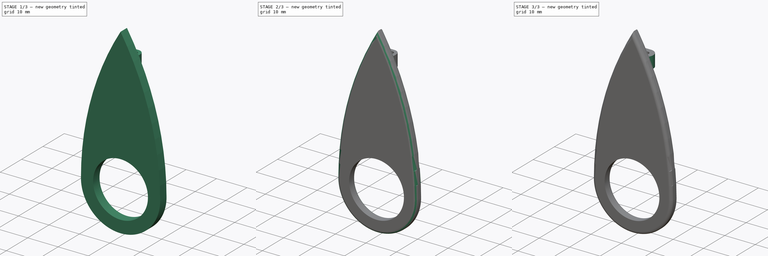
[diagram: build sequence overview — one tinted view per stage of 3, left to right]
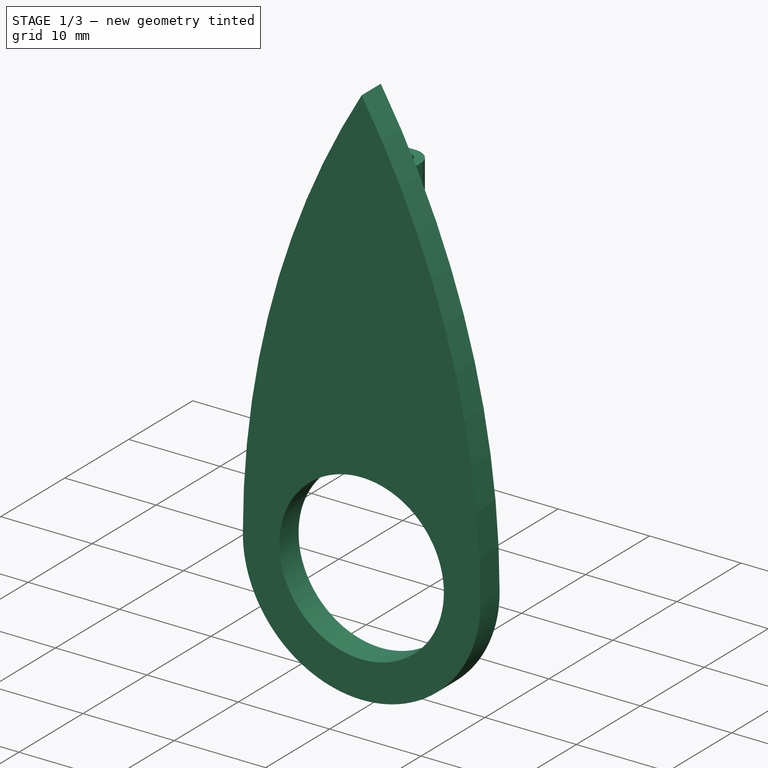
[diagram: stage 1 of 3 — iso view after this stage's code; geometry added in this stage tinted green]
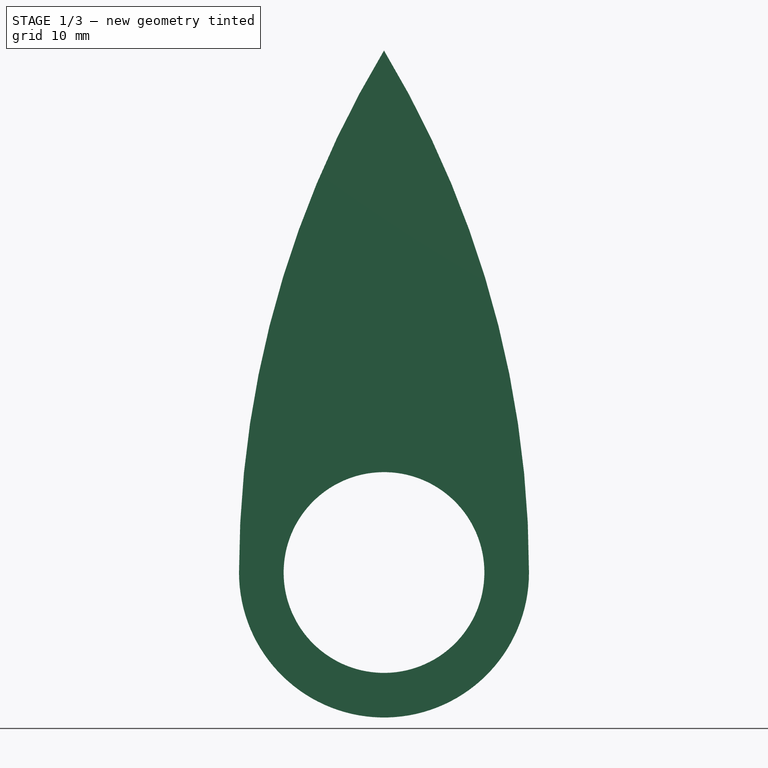
[diagram: stage 1 of 3 — front view after this stage's code; geometry added in this stage tinted green]
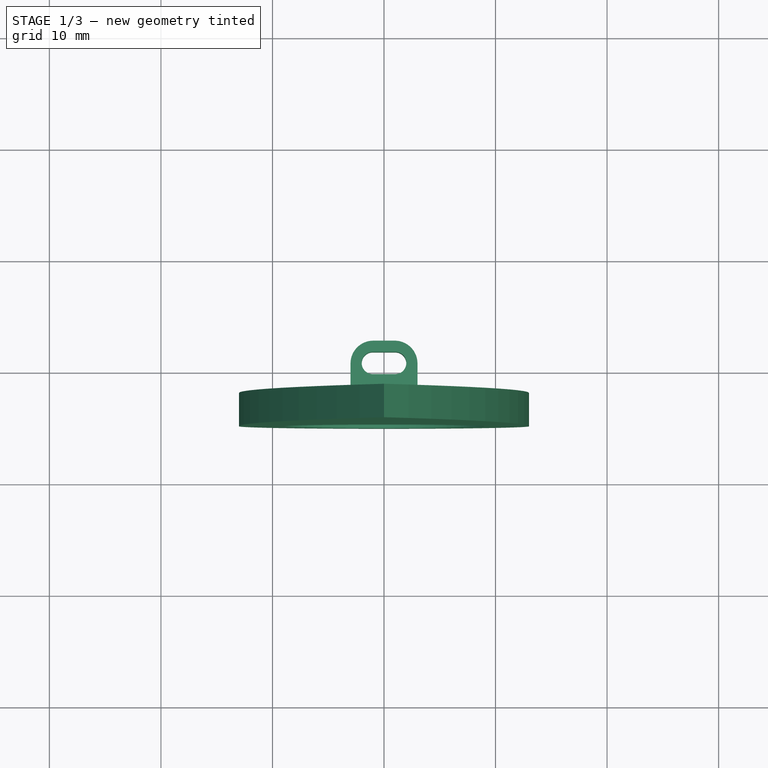
[diagram: stage 1 of 3 — top view after this stage's code; geometry added in this stage tinted green]
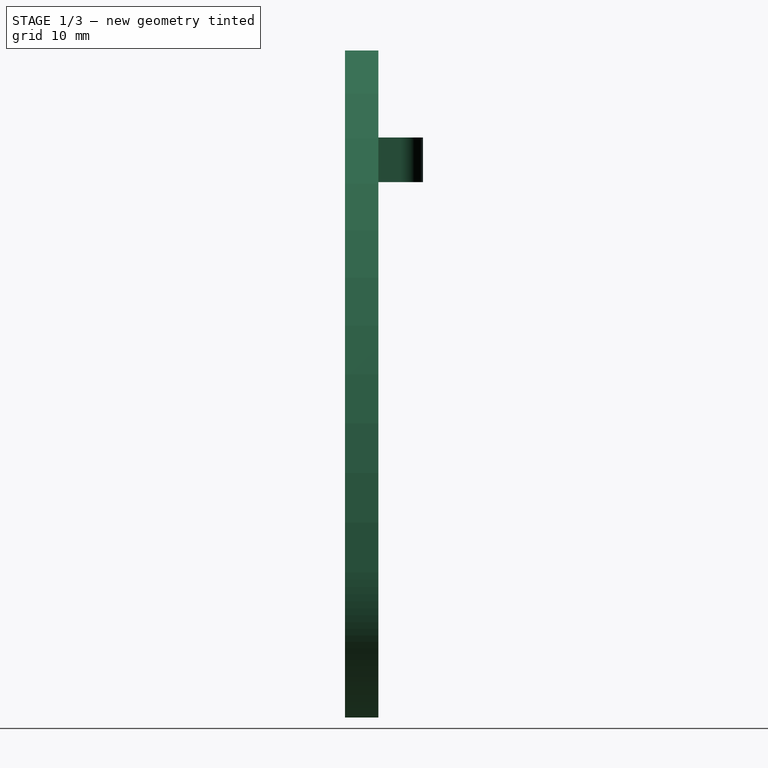
[diagram: stage 1 of 3 — right view after this stage's code; geometry added in this stage tinted green]
FCSTD DOCUMENT  (FreeCAD 0.21R33771 (Git))
Label: WireCollar
License: All rights reserved
LicenseURL: http://en.wikipedia.org/wiki/All_rights_reserved
objects: Sketcher::SketchObject×5, PartDesign::Pad×4, PartDesign::Body×2, App::Part×2, PartDesign::Fillet×2, Spreadsheet::Sheet×1, PartDesign::Pocket×1
note: 21 computed .brp shape members not serialized (recipe doc carries the construction recipe); baked Part::Feature solids carry a one-line shape summary decoded from their .brp

FEATURE [PartDesign::Body] Body  label="SqueezeBody"
  Group = -> [Sketch,Pad]
  Origin = -> Origin001
  Tip = -> Pad
FEATURE [App::Part] Part  label="SqueezePart"
  Group = -> [Body]
  Origin = -> Origin
FEATURE [Sketcher::SketchObject] Sketch001
  FullyConstrained = true
  MapMode = 5
  Support = -> [XY_Plane003]
  sketch-geometry (10):
    g0: ArcOfCircle CenterX=-1 CenterY=0 CenterZ=0 NormalX=0 NormalY=0 NormalZ=1 AngleXU=0 Radius=1 StartAngle=1.5708 EndAngle=4.71239
    g1: ArcOfCircle CenterX=1 CenterY=-2.363e-13 CenterZ=0 NormalX=0 NormalY=0 NormalZ=1 AngleXU=0 Radius=1 StartAngle=4.71239 EndAngle=7.85398
    g2: LineSegment StartX=-1 StartY=1 StartZ=0 EndX=1 EndY=1 EndZ=0
    g3: ArcOfCircle CenterX=-0.960385 CenterY=-0.0396153 CenterZ=0 NormalX=0 NormalY=0 NormalZ=1 AngleXU=0 Radius=2.04 StartAngle=1.59022 EndAngle=3.12217
    g4: ArcOfCircle CenterX=0.960385 CenterY=-0.0396153 CenterZ=0 NormalX=0 NormalY=0 NormalZ=1 AngleXU=0 Radius=2.04 StartAngle=0.0194205 EndAngle=1.55138
    g5: LineSegment StartX=-1 StartY=2 StartZ=0 EndX=1 EndY=2 EndZ=0
    g6: LineSegment StartX=-3 StartY=3e-16 StartZ=0 EndX=-3 EndY=-2 EndZ=0
    g7: LineSegment StartX=-3 StartY=-2 StartZ=0 EndX=3 EndY=-2 EndZ=0
    g8: LineSegment StartX=3 StartY=-2 StartZ=0 EndX=3 EndY=-2.24e-14 EndZ=0
    g9: LineSegment StartX=-1 StartY=-1 StartZ=0 EndX=0.999999 EndY=-1 EndZ=0
  constraints (34):
    c: DistanceY(g3,g-1) = 0
    c: Coincident(g3,g5)
    c: Horizontal(g5)
    c: DistanceY(g4) = 0
    c: Coincident(g4,g5)
    c: DistanceX(g-1,g1) = 1
    c: DistanceX(g0,g-1) = 1
    c: DistanceX(g-1,g4) = 3
    c: DistanceX(g3,g-1) = 3
    c: DistanceX(g3,g-1) = 1
    c: DistanceX(g-1,g4) = 1
    c: DistanceY(g-1,g4) = 2
    c: Coincident(g3,g6)
    c: Vertical(g6)
    c: Coincident(g6,g7)
    c: Horizontal(g7)
    c: Coincident(g7,g8)
    c: Coincident(g8,g4)
    c: Vertical(g8)
    c: DistanceY(g7,g-1) = 2
    c: Diameter(g1) = 2
    c: Diameter(g0) = 2
    c: Diameter(g3) = 4.08
    c: Diameter(g4) = 4.08
    c: DistanceY(g-1,g0) = 1
    c: DistanceY(g-1,g1) = 1
    c: DistanceY(g0,g-1) = 1
    c: DistanceY(g1,g-1) = 1
    c: DistanceX(g-1,g1) = 1
    c: DistanceX(g0,g-1) = 1
    c: Coincident(g2,g1)
    c: Coincident(g2,g0)
    c: Coincident(g9,g0)
    c: Coincident(g9,g1)
FEATURE [Sketcher::SketchObject] Sketch002
  FullyConstrained = true
  MapMode = 5
  Placement = pos=(0,-2,0) rot=(1,0,0;1.5708rad)
  sketch-geometry (4):
    g0: Circle CenterX=0 CenterY=-35 CenterZ=0 NormalX=0 NormalY=0 NormalZ=1 AngleXU=0 Radius=9
    g1: ArcOfCircle CenterX=0 CenterY=-35 CenterZ=0 NormalX=0 NormalY=0 NormalZ=1 AngleXU=0 Radius=13 StartAngle=3.14159 EndAngle=6.28319
    g2: ArcOfCircle CenterX=77.74 CenterY=-35 CenterZ=0 NormalX=0 NormalY=0 NormalZ=1 AngleXU=0 Radius=90.74 StartAngle=2.5997 EndAngle=3.14159
    g3: ArcOfCircle CenterX=-77.74 CenterY=-35 CenterZ=0 NormalX=0 NormalY=0 NormalZ=1 AngleXU=0 Radius=90.74 StartAngle=0 EndAngle=0.541894
  constraints (12):
    c: PointOnObject(g0,g-2)
    c: Diameter(g0) = 18
    c: DistanceY(g0,g-1) = 35
    c: Coincident(g1,g0)
    c: Diameter(g1) = 26
    c: DistanceY(g0,g1) = 0
    c: DistanceY(g1,g0) = 0
    c: Tangent(g1,g2) = -1.5708
    c: DistanceX(g-1,g2) = 0
    c: Tangent(g1,g3) = -1.5708
    c: Coincident(g3,g2)
    c: DistanceY(g-1,g2) = 11.8
FEATURE [Sketcher::SketchObject] Sketch004
  FullyConstrained = true
  MapMode = 5
  Placement = pos=(-1.5,0,0) rot=(-0.57735,0.57735,0.57735;4.18879rad)
  sketch-geometry (2):
    g0: Circle CenterX=0 CenterY=-6 CenterZ=0 NormalX=0 NormalY=0 NormalZ=1 AngleXU=0 Radius=1.15
    g1: Circle CenterX=0 CenterY=-9 CenterZ=0 NormalX=0 NormalY=0 NormalZ=1 AngleXU=0 Radius=1.15
  constraints (6):
    c: PointOnObject(g0,g-2)
    c: PointOnObject(g1,g-2)
    c: Equal(g0,g1)
    c: Diameter(g0) = 2.3
    c: DistanceY(g1,g-1) = 9
    c: DistanceY(g1,g0) = 3
FEATURE [PartDesign::Pad] Pad001
  Direction = (0,0,1)
  Length = 4
  Length2 = 10
  Profile = -> Sketch001
  ReferenceAxis = -> Sketch001 [N_Axis]
  Type = 0
FEATURE [PartDesign::Pad] Pad002
  BaseFeature = -> Pad001
  Direction = (0,-1,2e-16)
  Length = 3
  Length2 = 10
  Profile = -> Sketch002
  ReferenceAxis = -> Sketch002 [N_Axis]
  Type = 0
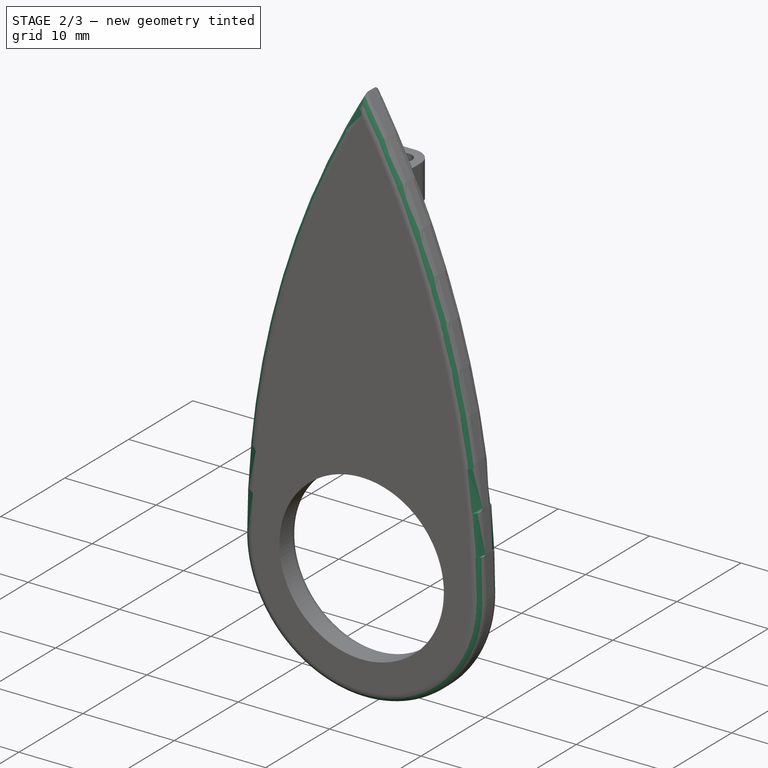
[diagram: stage 2 of 3 — iso view after this stage's code; geometry added in this stage tinted green]
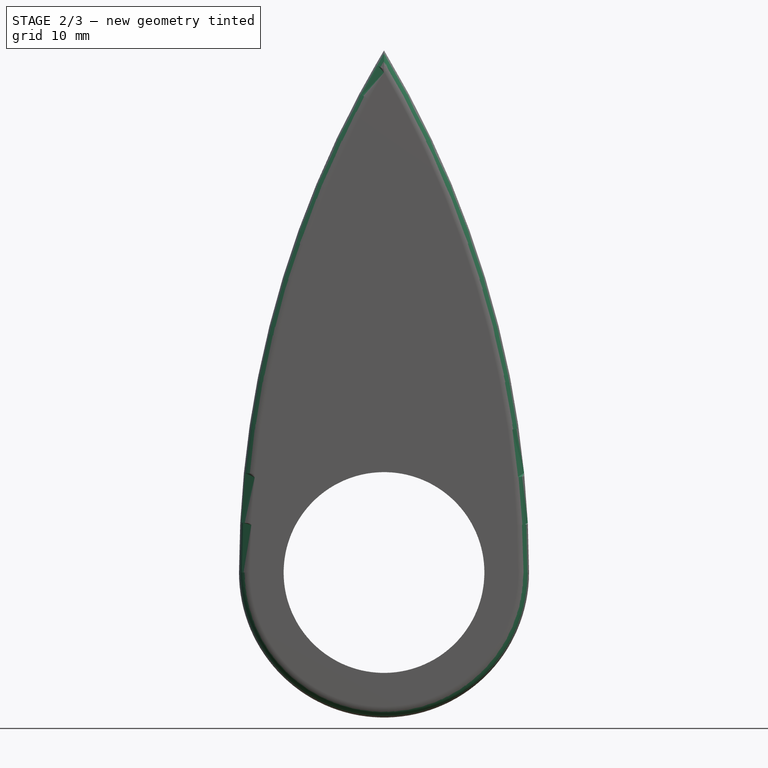
[diagram: stage 2 of 3 — front view after this stage's code; geometry added in this stage tinted green]
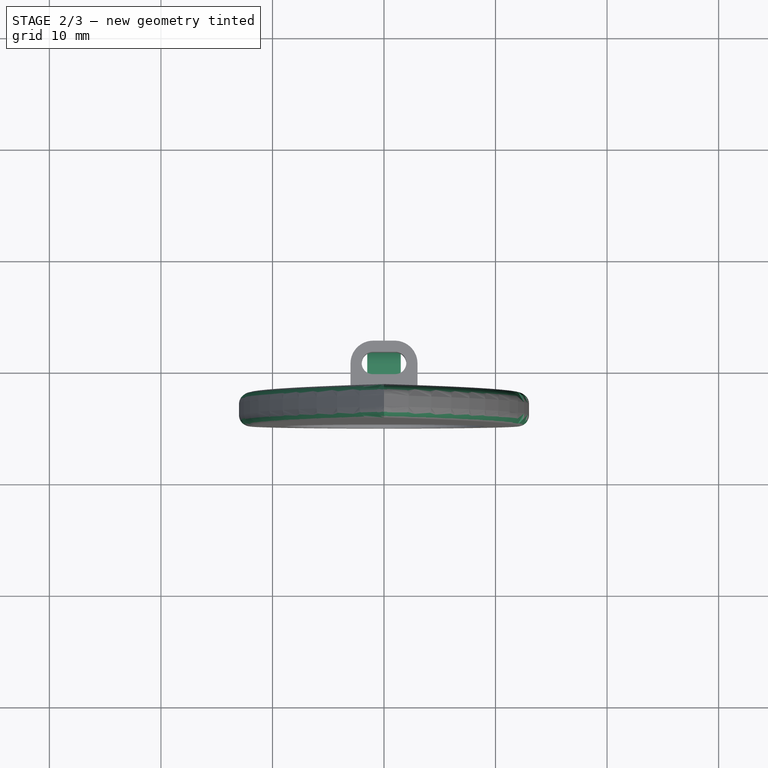
[diagram: stage 2 of 3 — top view after this stage's code; geometry added in this stage tinted green]
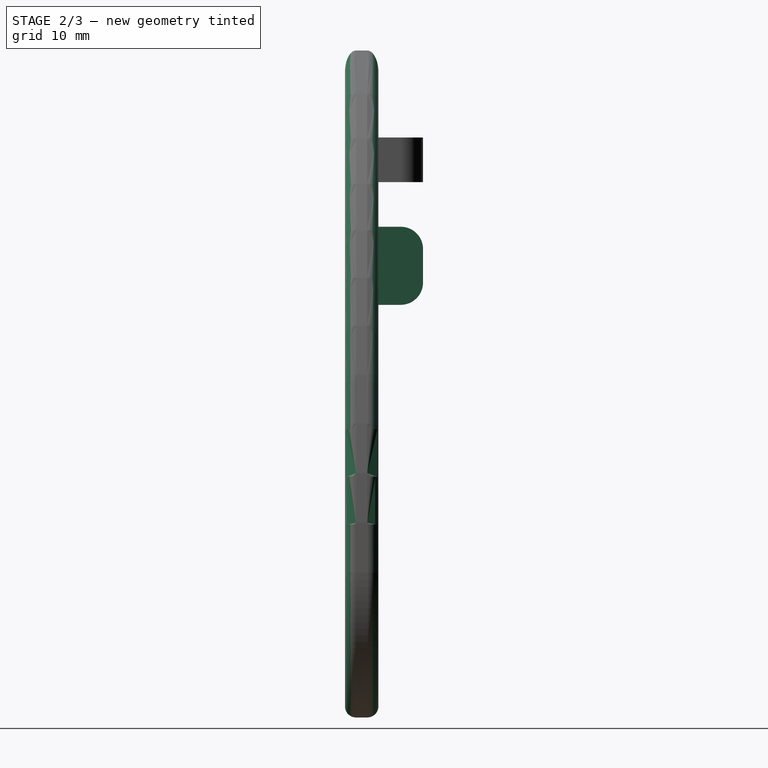
[diagram: stage 2 of 3 — right view after this stage's code; geometry added in this stage tinted green]
FEATURE [Sketcher::SketchObject] Sketch005
  FullyConstrained = true
  MapMode = 5
  Placement = pos=(0,-2,5e-16) rot=(0,0.707107,0.707107;3.14159rad)
  Support = -> [Pad002]
  sketch-geometry (4):
    g0: LineSegment StartX=-1.5 StartY=-4 StartZ=0 EndX=1.5 EndY=-4 EndZ=0
    g1: LineSegment StartX=1.5 StartY=-4 StartZ=0 EndX=1.5 EndY=-11 EndZ=0
    g2: LineSegment StartX=1.5 StartY=-11 StartZ=0 EndX=-1.5 EndY=-11 EndZ=0
    g3: LineSegment StartX=-1.5 StartY=-11 StartZ=0 EndX=-1.5 EndY=-4 EndZ=0
  constraints (12):
    c: Coincident(g0,g1)
    c: Coincident(g1,g2)
    c: Coincident(g2,g3)
    c: Coincident(g3,g0)
    c: Horizontal(g0)
    c: Horizontal(g2)
    c: Vertical(g1)
    c: Vertical(g3)
    c: DistanceY(g1,g1) = 7
    c: DistanceX(g0,g0) = 3
    c: DistanceX(g-1,g0) = 1.5
    c: DistanceY(g0,g-1) = 4
FEATURE [PartDesign::Pad] Pad003
  BaseFeature = -> Pad002
  Direction = (0,1,-2e-16)
  Length = 4
  Length2 = 10
  Profile = -> Sketch005
  ReferenceAxis = -> Sketch005 [N_Axis]
  Type = 0
FEATURE [PartDesign::Fillet] Fillet
  Base = -> Pad003 [Edge6,Edge8,Edge3,Edge14,Edge9,Edge4,Edge7]
  BaseFeature = -> Pad003
  Radius = 1
  SupportTransform = false
  UseAllEdges = false
FEATURE [PartDesign::Fillet] Fillet001
  Base = -> Fillet [Edge56,Edge59]
  BaseFeature = -> Fillet
  Radius = 2
  SupportTransform = false
  UseAllEdges = false
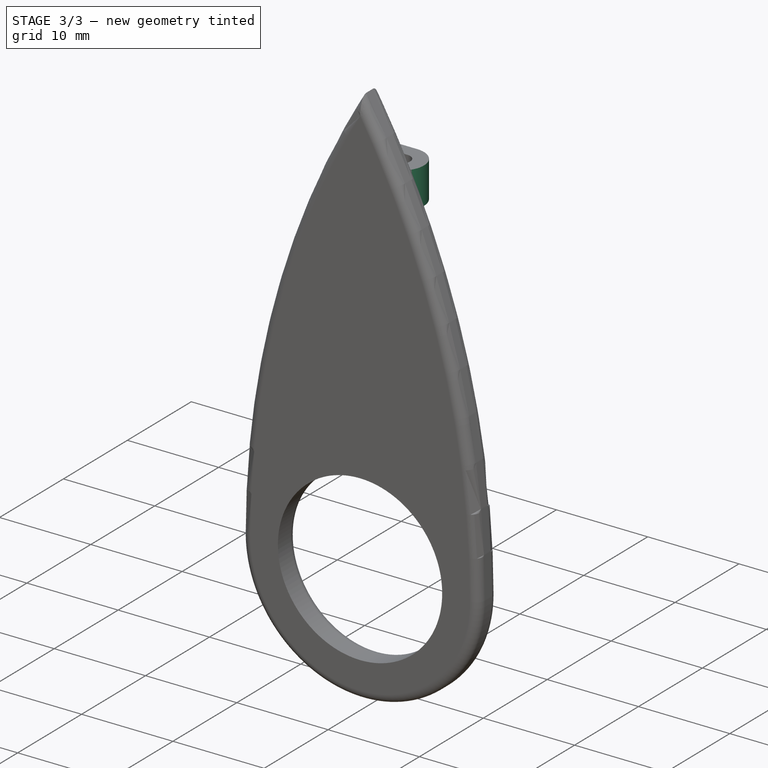
[diagram: stage 3 of 3 — iso view after this stage's code; geometry added in this stage tinted green]
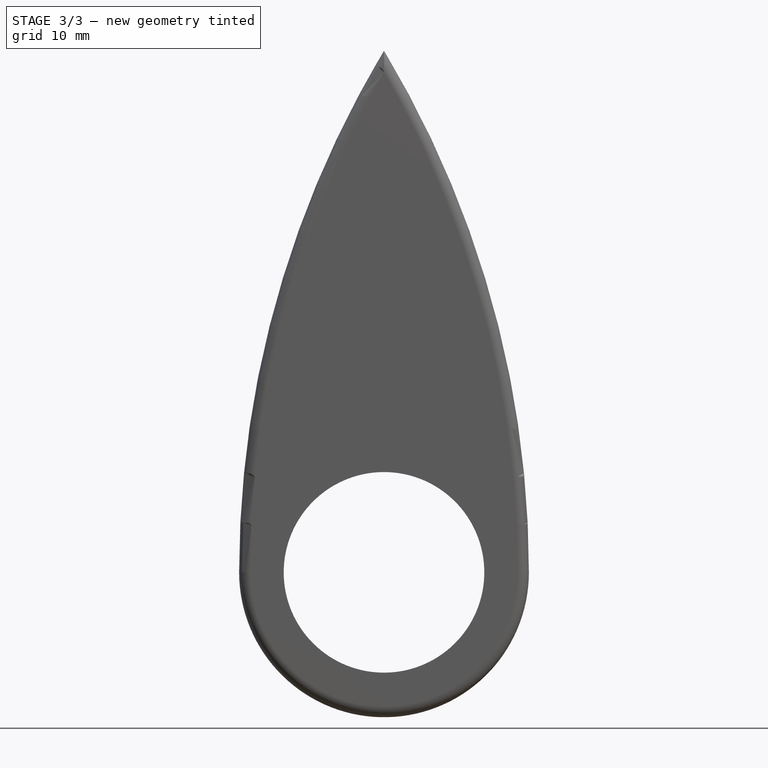
[diagram: stage 3 of 3 — front view after this stage's code; geometry added in this stage tinted green]
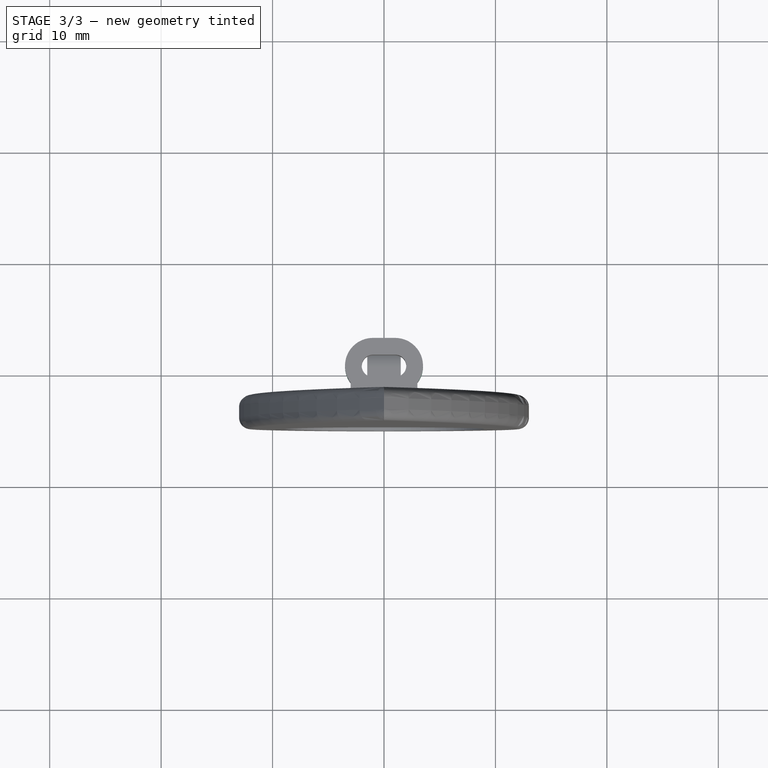
[diagram: stage 3 of 3 — top view after this stage's code; geometry added in this stage tinted green]
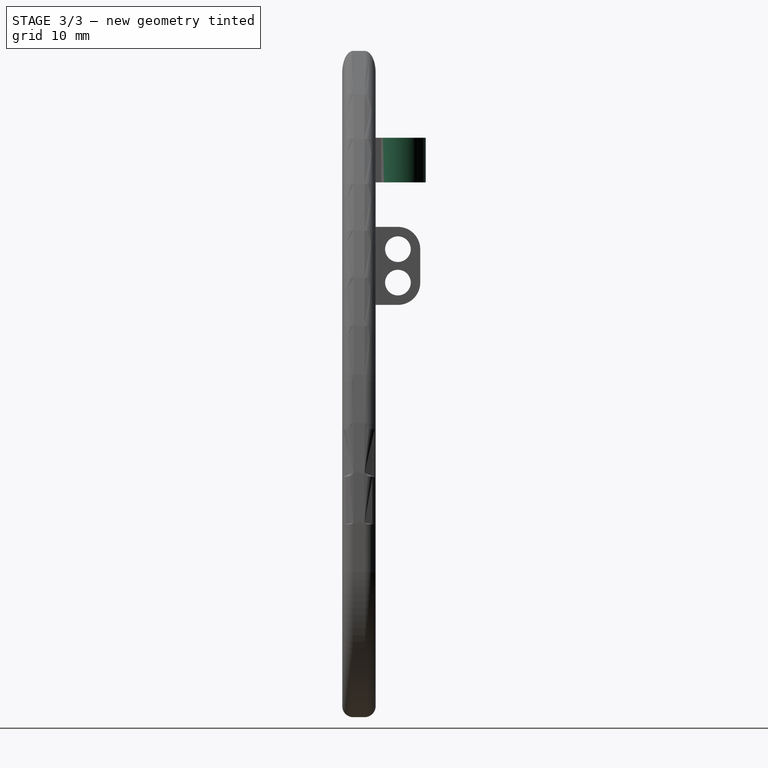
[diagram: stage 3 of 3 — right view after this stage's code; geometry added in this stage tinted green]
FEATURE [Spreadsheet::Sheet] Spreadsheet  label="p"
  cells = A1='wire_diameter; B1(wire_diamter)=2; A2='wall_thickness; B2(wall_thicklness)=3
FEATURE [Sketcher::SketchObject] Sketch
  FullyConstrained = true
  MapMode = 5
  Support = -> [XY_Plane001]
  expr: Constraints[13] = <<p>>.wire_diamter + <<p>>.wall_thicklness
  expr: Constraints[14] = <<p>>.wire_diamter / 2
  expr: Constraints[15] = <<p>>.wire_diamter / 2
  expr: Constraints[17] = <<p>>.wire_diamter + <<p>>.wall_thicklness
  expr: Constraints[18] = <<p>>.wire_diamter / 2
  expr: Constraints[19] = <<p>>.wire_diamter / 2
  expr: Constraints[25] = <<p>>.wire_diamter / 2
  expr: Constraints[2] = <<p>>.wire_diamter
  expr: Constraints[3] = <<p>>.wire_diamter
  expr: Constraints[4] = <<p>>.wire_diamter / 2
  expr: Constraints[5] = <<p>>.wire_diamter / 2
  expr: Constraints[6] = <<p>>.wire_diamter / 2
  expr: Constraints[7] = <<p>>.wire_diamter / 2
  sketch-geometry (8):
    g0: ArcOfCircle CenterX=-1 CenterY=0 CenterZ=0 NormalX=0 NormalY=0 NormalZ=1 AngleXU=0 Radius=1 StartAngle=1.5708 EndAngle=4.71239
    g1: ArcOfCircle CenterX=0.999999 CenterY=0 CenterZ=0 NormalX=0 NormalY=0 NormalZ=1 AngleXU=0 Radius=1 StartAngle=4.71239 EndAngle=7.85398
    g2: LineSegment StartX=-1 StartY=1 StartZ=0 EndX=1 EndY=1 EndZ=0
    g3: LineSegment StartX=-1 StartY=-1 StartZ=0 EndX=0.999999 EndY=-1 EndZ=0
    g4: ArcOfCircle CenterX=-1 CenterY=0 CenterZ=0 NormalX=0 NormalY=0 NormalZ=1 AngleXU=0 Radius=2.5 StartAngle=1.5708 EndAngle=4.71239
    g5: ArcOfCircle CenterX=0.999999 CenterY=0 CenterZ=0 NormalX=0 NormalY=0 NormalZ=1 AngleXU=0 Radius=2.5 StartAngle=4.71239 EndAngle=7.85398
    g6: LineSegment StartX=-1 StartY=2.5 StartZ=0 EndX=1 EndY=2.5 EndZ=0
    g7: LineSegment StartX=-1 StartY=-2.5 StartZ=0 EndX=1 EndY=-2.5 EndZ=0
  constraints (26):
    c: PointOnObject(g0,g-1)
    c: PointOnObject(g1,g-1)
    c: Diameter(g1) = 2
    c: Diameter(g0) = 2
    c: DistanceY(g-1,g0) = 1
    c: DistanceY(g0,g-1) = 1
    c: DistanceX(g0,g-1) = 1
    c: DistanceX(g-1,g1) = 1
    c: Coincident(g2,g0)
    c: Coincident(g2,g1)
    c: Coincident(g3,g0)
    c: Coincident(g3,g1)
    c: Coincident(g4,g0)
    c: Diameter(g4) = 5
    c: DistanceX(g4,g-1) = 1
    c: DistanceX(g4,g-1) = 1
    c: Coincident(g5,g1)
    c: Diameter(g5) = 5
    c: DistanceX(g-1,g5) = 1
    c: DistanceX(g-1,g5) = 1
    c: Coincident(g6,g4)
    c: Coincident(g6,g5)
    c: Coincident(g7,g4)
    c: Coincident(g7,g5)
    c: Horizontal(g7)
    c: DistanceY(g1,g-1) = 1
FEATURE [PartDesign::Pad] Pad
  Direction = (0,0,1)
  Length = 4
  Length2 = 10
  Profile = -> Sketch
  ReferenceAxis = -> Sketch [N_Axis]
  Type = 0
  expr: Length = <<p>>.wire_diamter * 2
FEATURE [PartDesign::Pocket] Pocket
  BaseFeature = -> Fillet001
  Direction = (1,0,0)
  Length = 5
  Length2 = 5
  Profile = -> Sketch004
  ReferenceAxis = -> Sketch004 [N_Axis]
  Type = 0
FEATURE [PartDesign::Body] Body001  label="EndInsultaorBody"
  Group = -> [Sketch001,Sketch002,Sketch004,Pad001,Pad002,Sketch005,Pad003,Fillet,Fillet001,Pocket]
  Origin = -> Origin003
  Tip = -> Pocket
FEATURE [App::Part] Part001  label="EndInsulatorPart"
  Group = -> [Body001]
  Origin = -> Origin002
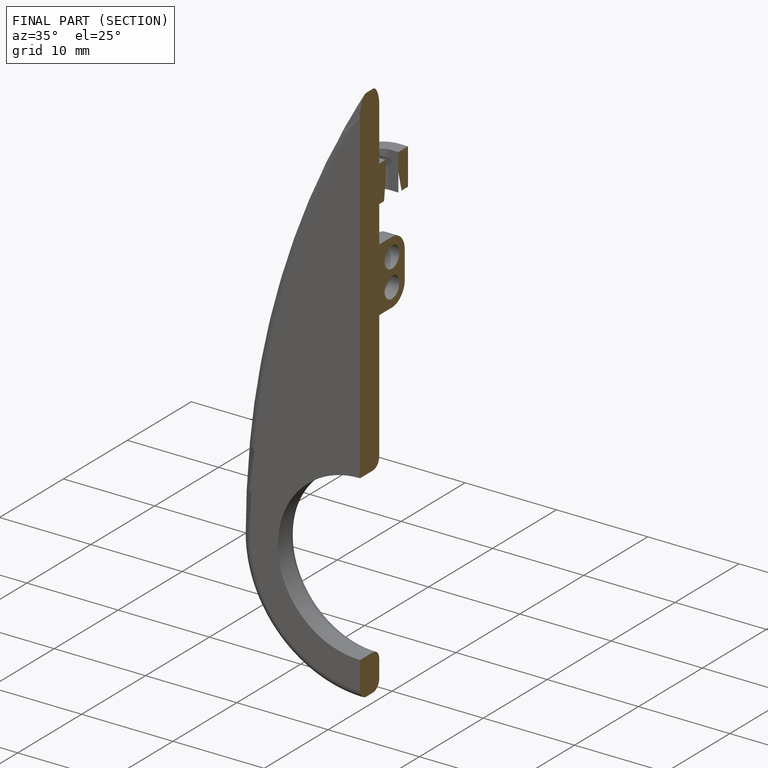
[diagram: finished part — half-section view (interior)]
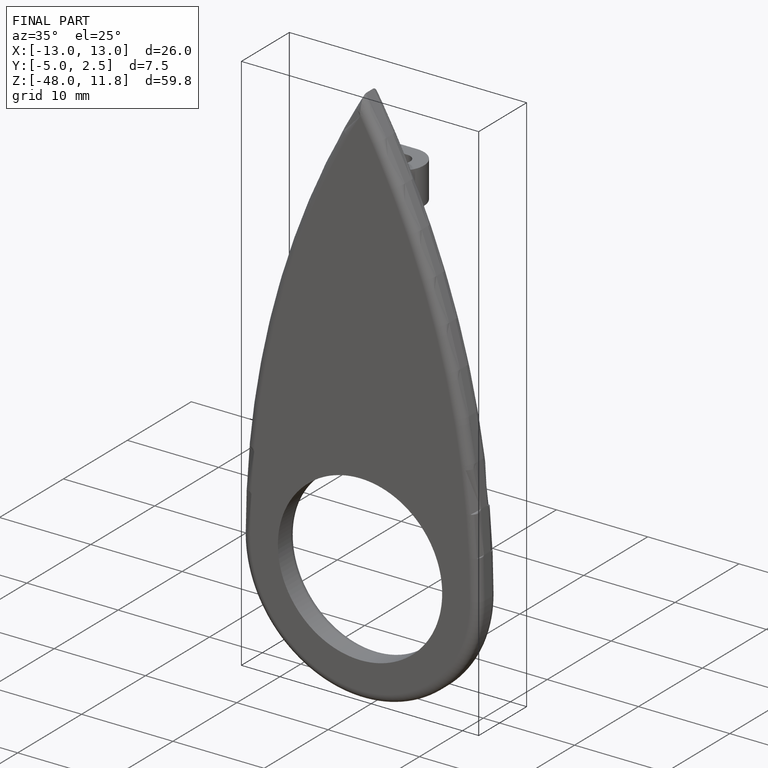
[diagram: finished part — iso view with bounding-box wireframe]
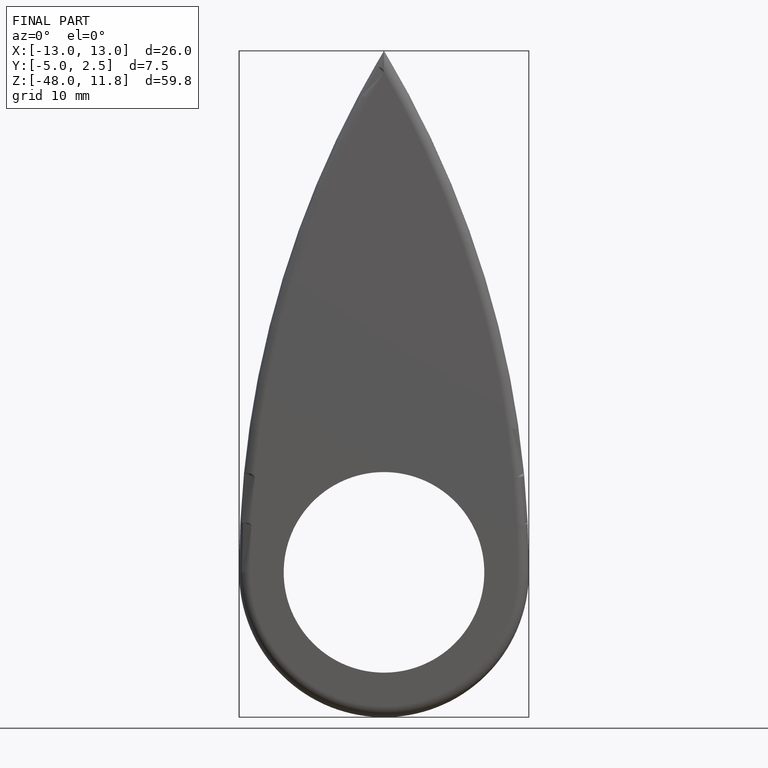
[diagram: finished part — front view with bounding-box wireframe]
